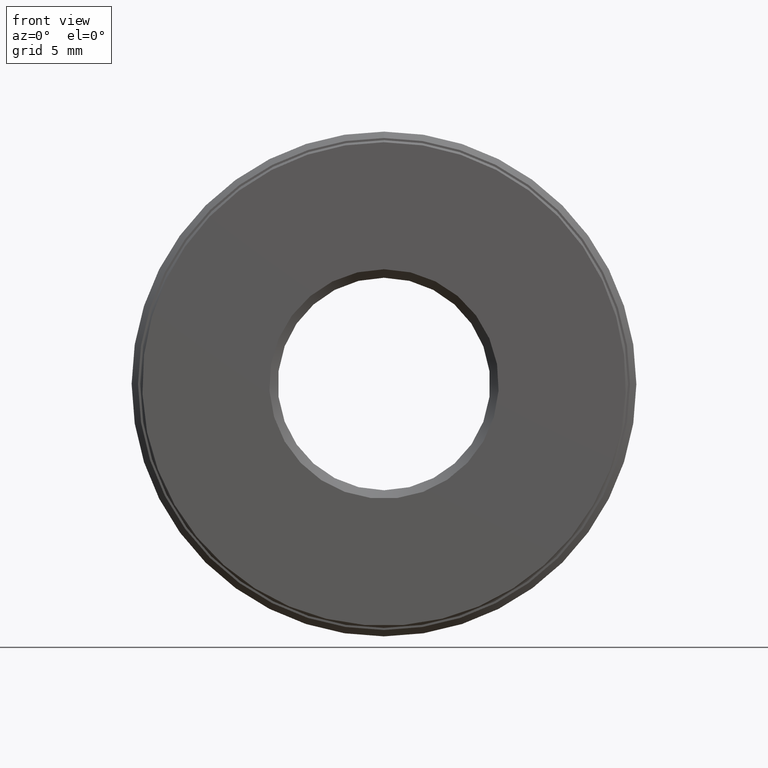
[diagram: clean part render]
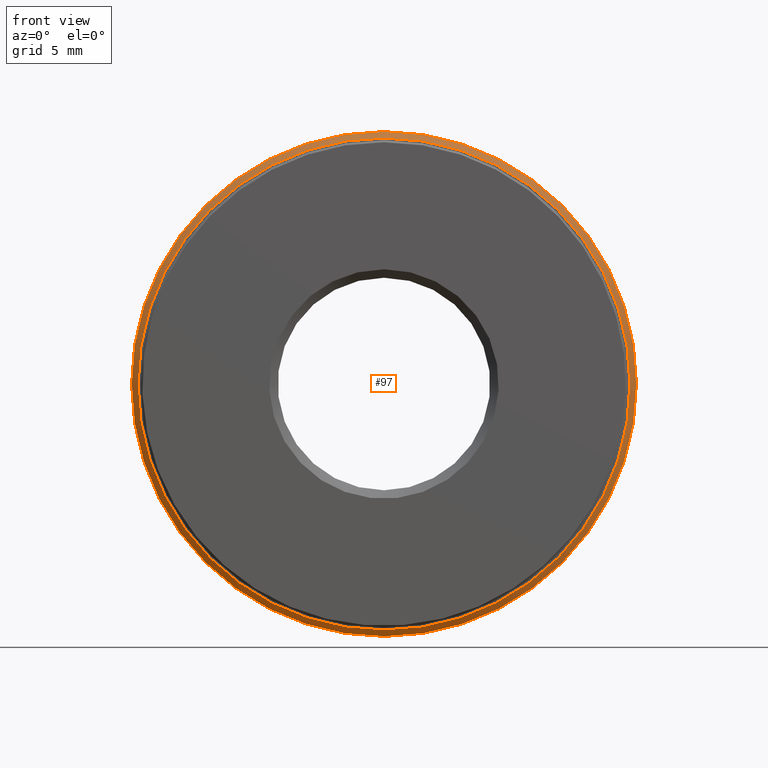
[diagram: same view with one face highlighted and labeled with its STEP entity id]
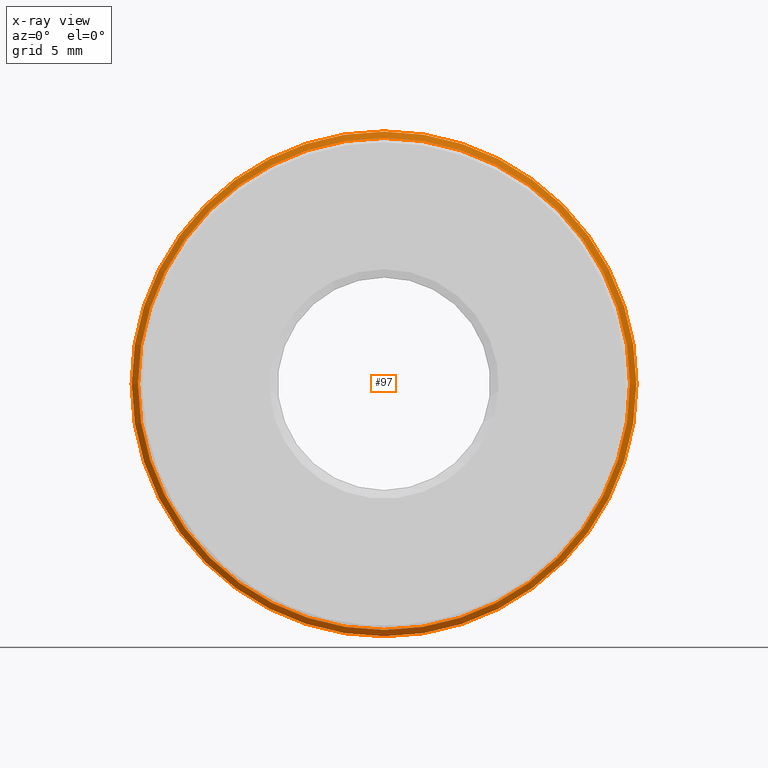
[diagram: x-ray of the same camera — body ghosted, the highlighted face saturated]
A machine part, front view. The second image highlights one B-rep face of the part: STEP entity #97.
The next image is the same camera in x-ray: the body ghosted, the highlighted face saturated — about 0% of this face is hidden behind the body in this view.
In plain terms, the highlighted conical surface has half-angle 45 deg.
Its self-contained STEP definition (entity closure, byte-faithful):
#5 = ORIENTED_EDGE ( 'NONE', *, *, #218, .T. ) ;
#61 = EDGE_LOOP ( 'NONE', ( #179 ) ) ;
#84 = CARTESIAN_POINT ( 'NONE',  ( 0.0000000000000000000, -4.481938114605432000E-017, 0.0000000000000000000 ) ) ;
#92 = DIRECTION ( 'NONE',  ( -0.0000000000000000000, 1.000000000000000000, -0.0000000000000000000 ) ) ;
#97 = ADVANCED_FACE ( 'NONE', ( #275, #385 ), #579, .T. ) ;
#177 = DIRECTION ( 'NONE',  ( 0.0000000000000000000, 0.0000000000000000000, 1.000000000000000000 ) ) ;
#179 = ORIENTED_EDGE ( 'NONE', *, *, #231, .F. ) ;
#184 = VERTEX_POINT ( 'NONE', #480 ) ;
#218 = EDGE_CURVE ( 'NONE', #443, #443, #553, .T. ) ;
#231 = EDGE_CURVE ( 'NONE', #184, #184, #560, .T. ) ;
#251 = CARTESIAN_POINT ( 'NONE',  ( 0.0000000000000000000, -4.481938114605432000E-017, 0.5787499999999999900 ) ) ;
#264 = DIRECTION ( 'NONE',  ( -0.0000000000000000000, 1.000000000000000000, -0.0000000000000000000 ) ) ;
#265 = AXIS2_PLACEMENT_3D ( 'NONE', #454, #92, #274 ) ;
#274 = DIRECTION ( 'NONE',  ( 0.0000000000000000000, 0.0000000000000000000, 1.000000000000000000 ) ) ;
#275 = FACE_OUTER_BOUND ( 'NONE', #61, .T. ) ;
#309 = DIRECTION ( 'NONE',  ( 0.0000000000000000000, 0.0000000000000000000, 1.000000000000000000 ) ) ;
#328 = EDGE_LOOP ( 'NONE', ( #5 ) ) ;
#337 = AXIS2_PLACEMENT_3D ( 'NONE', #84, #264, #309 ) ;
#385 = FACE_BOUND ( 'NONE', #328, .T. ) ;
#419 = CARTESIAN_POINT ( 'NONE',  ( 0.0000000000000000000, -4.481938114605432000E-017, 0.0000000000000000000 ) ) ;
#443 = VERTEX_POINT ( 'NONE', #251 ) ;
#454 = CARTESIAN_POINT ( 'NONE',  ( 0.0000000000000000000, 0.01499999999999997700, 0.0000000000000000000 ) ) ;
#464 = AXIS2_PLACEMENT_3D ( 'NONE', #419, #597, #177 ) ;
#480 = CARTESIAN_POINT ( 'NONE',  ( 0.0000000000000000000, 0.01499999999999997700, 0.5937499999999998900 ) ) ;
#553 = CIRCLE ( 'NONE', #464, 0.5787499999999999900 ) ;
#560 = CIRCLE ( 'NONE', #265, 0.5937499999999998900 ) ;
#579 = CONICAL_SURFACE ( 'NONE', #337, 0.5787499999999999900, 0.7853981633974445000 ) ;
#597 = DIRECTION ( 'NONE',  ( -0.0000000000000000000, 1.000000000000000000, -0.0000000000000000000 ) ) ;